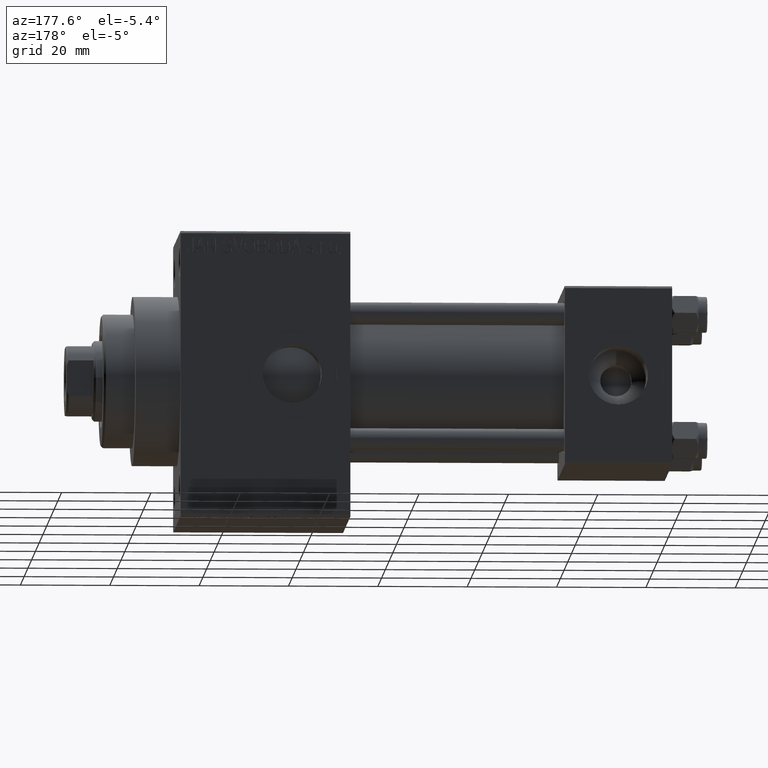
[diagram: clean part render]
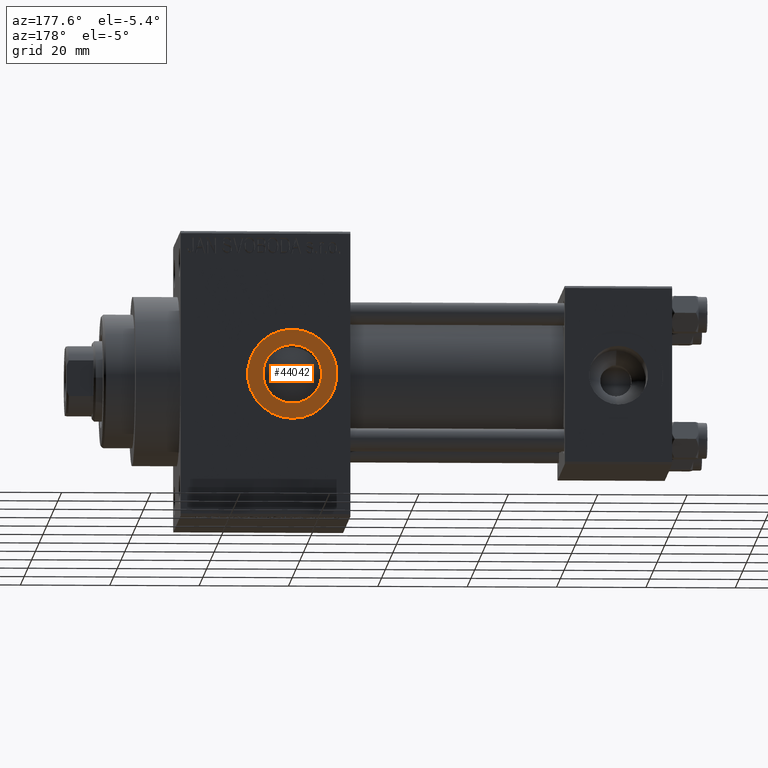
[diagram: same view with one face highlighted and labeled with its STEP entity id]
A machine part, auxiliary view. The second image highlights one B-rep face of the part: STEP entity #44042.
In plain terms, the highlighted planar face has unit normal (0, 1, 0).
Its self-contained STEP definition (entity closure, byte-faithful):
#36 = CARTESIAN_POINT ( 'NONE',  ( 85.00000000000000000, 19.80000000000000071, 0.000000000000000000 ) ) ;
#693 = CIRCLE ( 'NONE', #47082, 6.580000000000002736 ) ;
#2609 = AXIS2_PLACEMENT_3D ( 'NONE', #16662, #12240, #27262 ) ;
#3422 = VERTEX_POINT ( 'NONE', #34742 ) ;
#3554 = CARTESIAN_POINT ( 'NONE',  ( 85.00000000000000000, 19.80000000000000071, 6.580000000000002736 ) ) ;
#3711 = DIRECTION ( 'NONE',  ( 0.000000000000000000, 1.000000000000000000, 0.000000000000000000 ) ) ;
#6762 = PLANE ( 'NONE',  #42849 ) ;
#7896 = DIRECTION ( 'NONE',  ( 0.000000000000000000, 1.000000000000000000, 0.000000000000000000 ) ) ;
#9740 = CARTESIAN_POINT ( 'NONE',  ( 85.00000000000000000, 19.80000000000000071, -9.999999999999994671 ) ) ;
#10312 = EDGE_LOOP ( 'NONE', ( #43862, #45269 ) ) ;
#12240 = DIRECTION ( 'NONE',  ( 0.000000000000000000, 1.000000000000000000, 0.000000000000000000 ) ) ;
#13904 = DIRECTION ( 'NONE',  ( 0.000000000000000000, 1.000000000000000000, 0.000000000000000000 ) ) ;
#14049 = ORIENTED_EDGE ( 'NONE', *, *, #39037, .T. ) ;
#16662 = CARTESIAN_POINT ( 'NONE',  ( 85.00000000000000000, 19.80000000000000071, 0.000000000000000000 ) ) ;
#16987 = EDGE_CURVE ( 'NONE', #3422, #22572, #693, .T. ) ;
#21768 = DIRECTION ( 'NONE',  ( 0.000000000000000000, -0.000000000000000000, 1.000000000000000000 ) ) ;
#22499 = DIRECTION ( 'NONE',  ( 0.000000000000000000, 1.000000000000000000, 0.000000000000000000 ) ) ;
#22572 = VERTEX_POINT ( 'NONE', #3554 ) ;
#23115 = VERTEX_POINT ( 'NONE', #9740 ) ;
#24412 = CIRCLE ( 'NONE', #37004, 6.580000000000002736 ) ;
#24619 = CIRCLE ( 'NONE', #42821, 9.999999999999994671 ) ;
#25462 = CARTESIAN_POINT ( 'NONE',  ( 85.00000000000000000, 19.80000000000000071, 0.000000000000000000 ) ) ;
#26610 = EDGE_CURVE ( 'NONE', #22572, #3422, #24412, .T. ) ;
#26916 = CARTESIAN_POINT ( 'NONE',  ( 85.00000000000000000, 19.80000000000000071, 9.999999999999994671 ) ) ;
#27094 = DIRECTION ( 'NONE',  ( 0.000000000000000000, 0.000000000000000000, 1.000000000000000000 ) ) ;
#27262 = DIRECTION ( 'NONE',  ( 0.000000000000000000, 0.000000000000000000, 1.000000000000000000 ) ) ;
#28942 = FACE_OUTER_BOUND ( 'NONE', #31747, .T. ) ;
#29396 = VERTEX_POINT ( 'NONE', #26916 ) ;
#29818 = DIRECTION ( 'NONE',  ( 0.000000000000000000, 0.000000000000000000, 1.000000000000000000 ) ) ;
#31747 = EDGE_LOOP ( 'NONE', ( #44273, #14049 ) ) ;
#34742 = CARTESIAN_POINT ( 'NONE',  ( 85.00000000000000000, 19.80000000000000071, -6.580000000000002736 ) ) ;
#37004 = AXIS2_PLACEMENT_3D ( 'NONE', #36, #3711, #29818 ) ;
#37997 = CIRCLE ( 'NONE', #2609, 9.999999999999994671 ) ;
#39037 = EDGE_CURVE ( 'NONE', #23115, #29396, #24619, .T. ) ;
#40208 = EDGE_CURVE ( 'NONE', #29396, #23115, #37997, .T. ) ;
#40748 = DIRECTION ( 'NONE',  ( 0.000000000000000000, 0.000000000000000000, 1.000000000000000000 ) ) ;
#42821 = AXIS2_PLACEMENT_3D ( 'NONE', #43487, #13904, #40748 ) ;
#42849 = AXIS2_PLACEMENT_3D ( 'NONE', #25462, #22499, #21768 ) ;
#43487 = CARTESIAN_POINT ( 'NONE',  ( 85.00000000000000000, 19.80000000000000071, 0.000000000000000000 ) ) ;
#43862 = ORIENTED_EDGE ( 'NONE', *, *, #26610, .F. ) ;
#44042 = ADVANCED_FACE ( 'NONE', ( #44946, #28942 ), #6762, .T. ) ;
#44273 = ORIENTED_EDGE ( 'NONE', *, *, #40208, .T. ) ;
#44946 = FACE_BOUND ( 'NONE', #10312, .T. ) ;
#45269 = ORIENTED_EDGE ( 'NONE', *, *, #16987, .F. ) ;
#45832 = CARTESIAN_POINT ( 'NONE',  ( 85.00000000000000000, 19.80000000000000071, 0.000000000000000000 ) ) ;
#47082 = AXIS2_PLACEMENT_3D ( 'NONE', #45832, #7896, #27094 ) ;